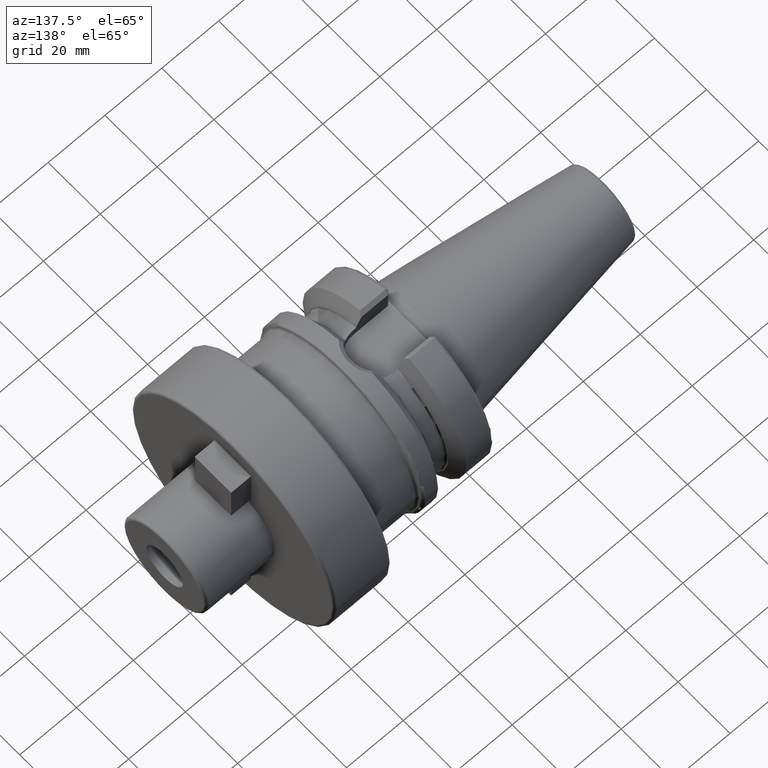
[diagram: clean part render]
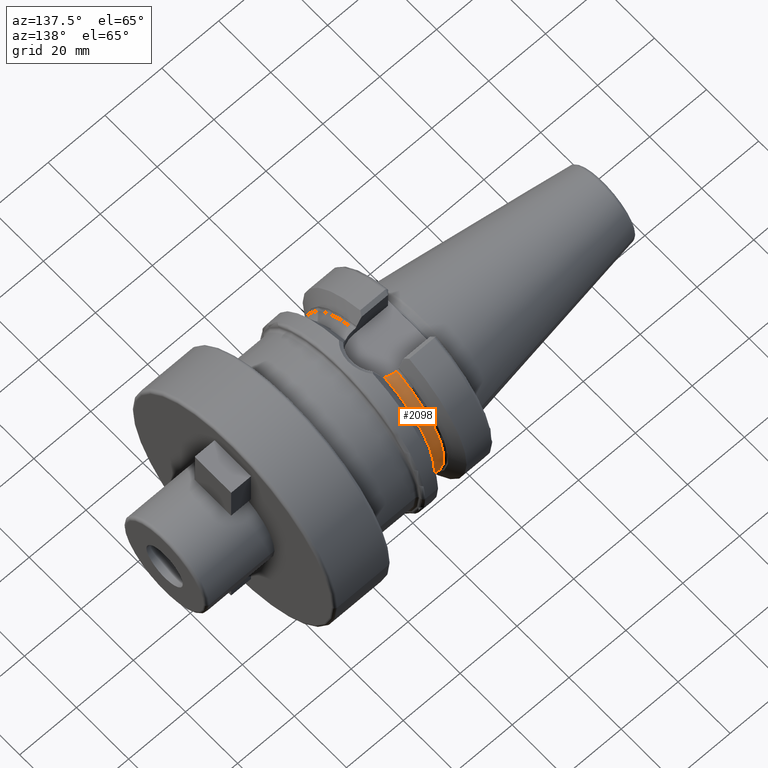
[diagram: same view with one face highlighted and labeled with its STEP entity id]
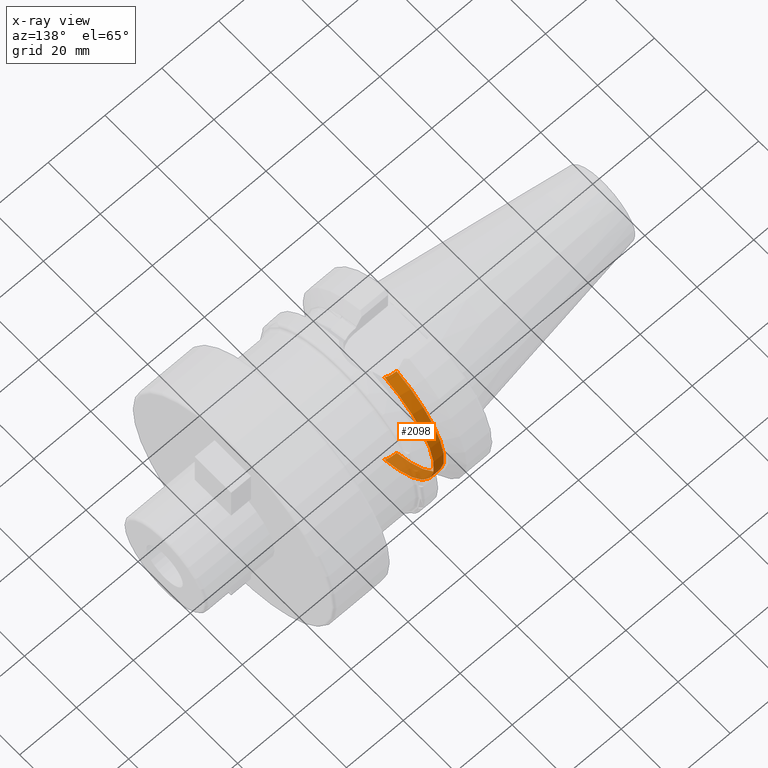
[diagram: x-ray of the same camera — body ghosted, the highlighted face saturated]
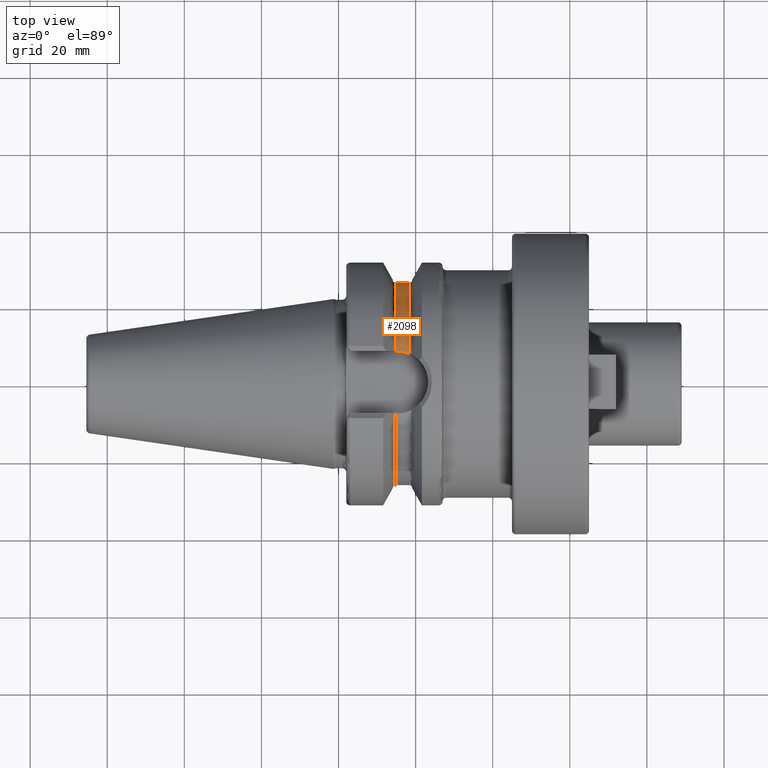
[diagram: same view with one face highlighted and labeled with its STEP entity id]
A machine part, auxiliary view. The second image highlights one B-rep face of the part: STEP entity #2098.
The next image is the same camera in x-ray: the body ghosted, the highlighted face saturated — about 28% of this face is hidden behind the body in this view.
A second angle (top view) of the same face is appended — the face is thin or edge-on in the first view.
In plain terms, the highlighted cylindrical surface (partial cylindrical patch) has radius 26.375 mm, axis along (1, 0, 0).
Its self-contained STEP definition (entity closure, byte-faithful):
#185=DIRECTION('',(1.E0,2.074577330686E-14,0.E0));
#186=VECTOR('',#185,3.425E-1);
#187=CARTESIAN_POINT('',(1.48125E1,8.095E0,-2.510202382279E1));
#188=LINE('',#187,#186);
#348=CARTESIAN_POINT('',(1.48125E1,0.E0,0.E0));
#349=DIRECTION('',(-1.E0,0.E0,0.E0));
#350=DIRECTION('',(0.E0,3.069194312796E-1,9.517355003902E-1));
#351=AXIS2_PLACEMENT_3D('',#348,#349,#350);
#353=CARTESIAN_POINT('',(1.5155E1,8.095E0,-2.510202382279E1));
#354=CARTESIAN_POINT('',(1.552274115811E1,8.095E0,-2.510202382279E1));
#355=CARTESIAN_POINT('',(1.625266243215E1,8.045449937199E0,-2.511808739773E1));
#356=CARTESIAN_POINT('',(1.734035783533E1,7.820815510938E0,-2.518941465745E1));
#357=CARTESIAN_POINT('',(1.804170386658E1,7.572200800424E0,-2.526513476705E1));
#358=CARTESIAN_POINT('',(1.83875E1,7.421588020768E0,-2.530929979770E1));
#360=CARTESIAN_POINT('',(1.83875E1,7.421588020768E0,2.530929979770E1));
#361=CARTESIAN_POINT('',(1.804170386658E1,7.572200800424E0,2.526513476705E1));
#362=CARTESIAN_POINT('',(1.734035783533E1,7.820815510938E0,2.518941465745E1));
#363=CARTESIAN_POINT('',(1.625266243215E1,8.045449937199E0,2.511808739773E1));
#364=CARTESIAN_POINT('',(1.552274115811E1,8.095E0,2.510202382279E1));
#365=CARTESIAN_POINT('',(1.5155E1,8.095E0,2.510202382279E1));
#450=CARTESIAN_POINT('',(1.83875E1,0.E0,0.E0));
#451=DIRECTION('',(-1.E0,0.E0,0.E0));
#452=DIRECTION('',(0.E0,2.813872235362E-1,9.595943051262E-1));
#453=AXIS2_PLACEMENT_3D('',#450,#451,#452);
#657=DIRECTION('',(1.E0,0.E0,0.E0));
#658=VECTOR('',#657,3.425E-1);
#659=CARTESIAN_POINT('',(1.48125E1,8.095E0,2.510202382279E1));
#660=LINE('',#659,#658);
#1382=CARTESIAN_POINT('',(1.48125E1,8.095E0,2.510202382279E1));
#1383=CARTESIAN_POINT('',(1.48125E1,8.095E0,-2.510202382279E1));
#1384=VERTEX_POINT('',#1382);
#1385=VERTEX_POINT('',#1383);
#1394=CARTESIAN_POINT('',(1.83875E1,7.421588020768E0,2.530929979770E1));
#1395=CARTESIAN_POINT('',(1.83875E1,7.421588020768E0,-2.530929979770E1));
#1396=VERTEX_POINT('',#1394);
#1397=VERTEX_POINT('',#1395);
#1512=CARTESIAN_POINT('',(1.5155E1,8.095E0,2.510202382279E1));
#1513=VERTEX_POINT('',#1512);
#1520=CARTESIAN_POINT('',(1.5155E1,8.095E0,-2.510202382279E1));
#1521=VERTEX_POINT('',#1520);
#2081=CARTESIAN_POINT('',(1.106999478413E1,0.E0,0.E0));
#2082=DIRECTION('',(1.E0,0.E0,0.E0));
#2083=DIRECTION('',(0.E0,-1.E0,0.E0));
#2084=AXIS2_PLACEMENT_3D('',#2081,#2082,#2083);
#2085=CYLINDRICAL_SURFACE('',#2084,2.6375E1);
#2086=ORIENTED_EDGE('',*,*,#2060,.T.);
#2087=ORIENTED_EDGE('',*,*,#1891,.T.);
#2089=ORIENTED_EDGE('',*,*,#2088,.T.);
#2091=ORIENTED_EDGE('',*,*,#2090,.F.);
#2093=ORIENTED_EDGE('',*,*,#2092,.T.);
#2095=ORIENTED_EDGE('',*,*,#2094,.F.);
#2096=EDGE_LOOP('',(#2086,#2087,#2089,#2091,#2093,#2095));
#2097=FACE_OUTER_BOUND('',#2096,.F.);
#2098=ADVANCED_FACE('',(#2097),#2085,.T.);
#352=CIRCLE('',#351,2.6375E1);
#359=B_SPLINE_CURVE_WITH_KNOTS('',3,(#353,#354,#355,#356,#357,#358),
.UNSPECIFIED.,.F.,.F.,(4,1,1,4),(0.E0,3.333333333333E-1,6.666666666667E-1,1.E0),
.UNSPECIFIED.);
#366=B_SPLINE_CURVE_WITH_KNOTS('',3,(#360,#361,#362,#363,#364,#365),
.UNSPECIFIED.,.F.,.F.,(4,1,1,4),(0.E0,3.333333333333E-1,6.666666666667E-1,1.E0),
.UNSPECIFIED.);
#454=CIRCLE('',#453,2.6375E1);
#1891=EDGE_CURVE('',#1385,#1521,#188,.T.);
#2060=EDGE_CURVE('',#1384,#1385,#352,.T.);
#2088=EDGE_CURVE('',#1521,#1397,#359,.T.);
#2090=EDGE_CURVE('',#1396,#1397,#454,.T.);
#2092=EDGE_CURVE('',#1396,#1513,#366,.T.);
#2094=EDGE_CURVE('',#1384,#1513,#660,.T.);